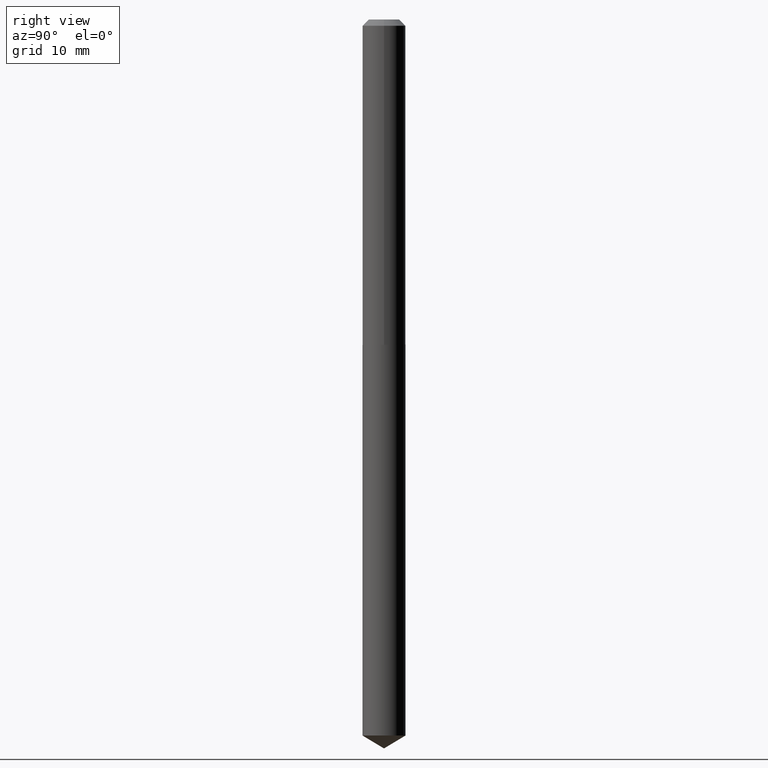
[diagram: clean part render]
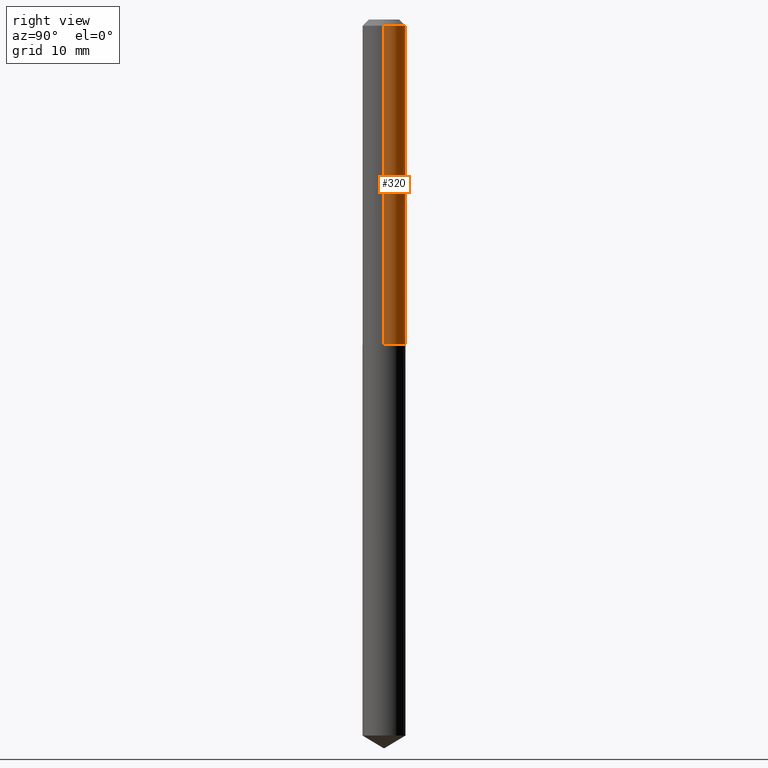
[diagram: same view with one face highlighted and labeled with its STEP entity id]
A machine part, right view. The second image highlights one B-rep face of the part: STEP entity #320.
In plain terms, the highlighted cylindrical surface (edge-blend (fillet) strip) has radius 2.7496 mm, axis along (-0, 0, 1).
Its self-contained STEP definition (entity closure, byte-faithful):
#5 = AXIS2_PLACEMENT_3D ( 'NONE', #378, #141, #387 ) ;
#9 = CARTESIAN_POINT ( 'NONE',  ( 0.1082500000000001239, -7.559057098595392471E-16, 5.278461359799106297E-30 ) ) ;
#14 = AXIS2_PLACEMENT_3D ( 'NONE', #184, #282, #76 ) ;
#17 = EDGE_LOOP ( 'NONE', ( #21, #77, #196, #252 ) ) ;
#21 = ORIENTED_EDGE ( 'NONE', *, *, #30, .T. ) ;
#30 = EDGE_CURVE ( 'NONE', #160, #186, #153, .T. ) ;
#39 = DIRECTION ( 'NONE',  ( -2.445468806185136877E-29, 3.491481338843145188E-15, 1.000000000000000000 ) ) ;
#47 = CIRCLE ( 'NONE', #62, 0.1082500000000000129 ) ;
#60 = DIRECTION ( 'NONE',  ( 1.000000000000000000, -6.982962677686266711E-15, 0.000000000000000000 ) ) ;
#62 = AXIS2_PLACEMENT_3D ( 'NONE', #173, #89, #60 ) ;
#65 = EDGE_CURVE ( 'NONE', #379, #326, #47, .T. ) ;
#71 = VECTOR ( 'NONE', #87, 39.37007874015748143 ) ;
#76 = DIRECTION ( 'NONE',  ( 1.000000000000000000, -6.982962677686266711E-15, 4.876176775795935793E-29 ) ) ;
#77 = ORIENTED_EDGE ( 'NONE', *, *, #346, .T. ) ;
#79 = CARTESIAN_POINT ( 'NONE',  ( 0.1082500000000002210, -6.458542180592048616E-15, -1.633299999999999752 ) ) ;
#87 = DIRECTION ( 'NONE',  ( -2.445468806185136877E-29, 3.491481338843145188E-15, 1.000000000000000000 ) ) ;
#89 = DIRECTION ( 'NONE',  ( -2.445468806185136597E-29, 3.491481338843145583E-15, 1.000000000000000000 ) ) ;
#101 = LINE ( 'NONE', #9, #124 ) ;
#117 = CARTESIAN_POINT ( 'NONE',  ( 0.1082500000000000129, -8.650145016983875588E-16, -0.03125000000000022204 ) ) ;
#124 = VECTOR ( 'NONE', #39, 39.37007874015748143 ) ;
#141 = DIRECTION ( 'NONE',  ( -2.445468806185136597E-29, 3.491481338843145583E-15, 1.000000000000000000 ) ) ;
#144 = EDGE_CURVE ( 'NONE', #160, #379, #101, .T. ) ;
#153 = CIRCLE ( 'NONE', #5, 0.1082500000000002210 ) ;
#160 = VERTEX_POINT ( 'NONE', #79 ) ;
#162 = CARTESIAN_POINT ( 'NONE',  ( -0.1082500000000000129, -2.136710119825369016E-15, -0.03125000000000022204 ) ) ;
#164 = CARTESIAN_POINT ( 'NONE',  ( -0.1082500000000002210, -4.933473959272198657E-15, -1.633299999999999752 ) ) ;
#173 = CARTESIAN_POINT ( 'NONE',  ( 7.642090019328606165E-31, -1.091087918388490760E-16, -0.03125000000000022204 ) ) ;
#184 = CARTESIAN_POINT ( 'NONE',  ( 0.000000000000000000, 0.000000000000000000, 0.000000000000000000 ) ) ;
#186 = VERTEX_POINT ( 'NONE', #164 ) ;
#196 = ORIENTED_EDGE ( 'NONE', *, *, #65, .F. ) ;
#229 = CARTESIAN_POINT ( 'NONE',  ( -0.1082500000000001239, 7.691625114603093316E-16, -5.324747235200940914E-30 ) ) ;
#249 = FACE_OUTER_BOUND ( 'NONE', #17, .T. ) ;
#252 = ORIENTED_EDGE ( 'NONE', *, *, #144, .F. ) ;
#282 = DIRECTION ( 'NONE',  ( -2.445468806185136597E-29, 3.491481338843145583E-15, 1.000000000000000000 ) ) ;
#290 = LINE ( 'NONE', #229, #71 ) ;
#320 = ADVANCED_FACE ( 'NONE', ( #249 ), #371, .T. ) ;
#326 = VERTEX_POINT ( 'NONE', #162 ) ;
#346 = EDGE_CURVE ( 'NONE', #186, #326, #290, .T. ) ;
#371 = CYLINDRICAL_SURFACE ( 'NONE', #14, 0.1082500000000001239 ) ;
#378 = CARTESIAN_POINT ( 'NONE',  ( 3.994184201142183102E-29, -5.702636470732509172E-15, -1.633299999999999752 ) ) ;
#379 = VERTEX_POINT ( 'NONE', #117 ) ;
#387 = DIRECTION ( 'NONE',  ( 1.000000000000000000, -6.982962677686261977E-15, 0.000000000000000000 ) ) ;